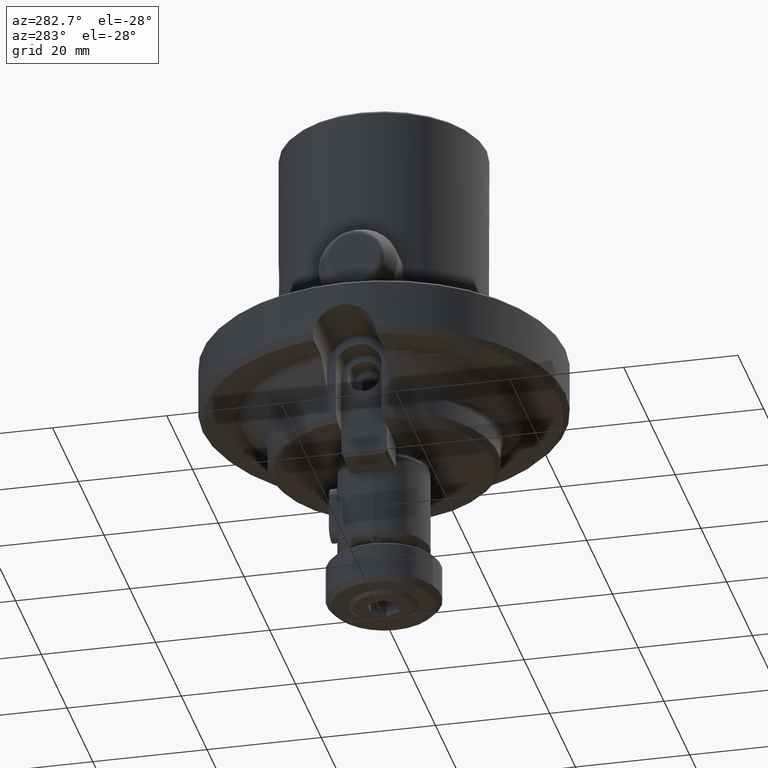
[diagram: clean part render]
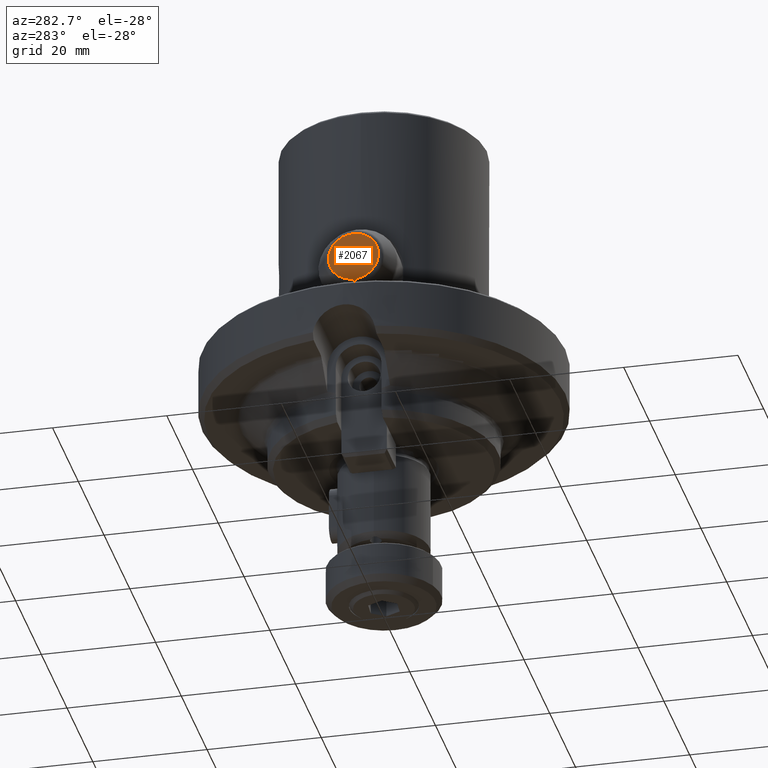
[diagram: same view with one face highlighted and labeled with its STEP entity id]
A machine part, auxiliary view. The second image highlights one B-rep face of the part: STEP entity #2067.
In plain terms, the highlighted planar face has unit normal (1, 0, 0).
Its self-contained STEP definition (entity closure, byte-faithful):
#1239=VERTEX_POINT('NONE',#3467);
#1445=EDGE_CURVE('Kante5',#1569,#1239,#3696,.T.);
#1569=VERTEX_POINT('NONE',#3829);
#2067=ADVANCED_FACE('NONE',(#4385),#4386,.F.);
#2069=EDGE_CURVE('Kante5',#1239,#1569,#4388,.T.);
#3467=CARTESIAN_POINT('',(-23.6764049373483,0.141017633830679,13.393528786593));
#3696=CIRCLE('',#6358,4.39579130210616);
#3829=CARTESIAN_POINT('',(-23.6764049373483,-0.14101763383051,4.60647121340705));
#4385=FACE_OUTER_BOUND('',#7704,.T.);
#4386=PLANE('',#7705);
#4388=CIRCLE('',#7708,4.39579130210616);
#6358=AXIS2_PLACEMENT_3D('',#10575,#10576,#10577);
#7704=EDGE_LOOP('',(#11367,#11368));
#7705=AXIS2_PLACEMENT_3D('',#11369,#11370,#11371);
#7708=AXIS2_PLACEMENT_3D('',#11372,#11373,#11374);
#10575=CARTESIAN_POINT('',(-23.6764049373483,8.51555870861016E-014,9.00000000000001));
#10576=DIRECTION('',(1.0,1.22464679914735E-016,6.37890785824931E-033));
#10577=DIRECTION('',(3.92868500857237E-018,-0.0320801476091528,-0.99948529960644));
#11367=ORIENTED_EDGE('',*,*,#1445,.F.);
#11368=ORIENTED_EDGE('',*,*,#2069,.F.);
#11369=CARTESIAN_POINT('',(-23.6764049373483,4.39352878659304,8.85898236616941));
#11370=DIRECTION('',(1.0,1.22464679914735E-016,6.16297582203915E-033));
#11371=DIRECTION('',(3.92868500857237E-018,-0.0320801476091528,-0.99948529960644));
#11372=CARTESIAN_POINT('',(-23.6764049373483,8.51555870861016E-014,9.00000000000001));
#11373=DIRECTION('',(1.0,1.22464679914735E-016,6.37890785824931E-033));
#11374=DIRECTION('',(3.92868500857237E-018,-0.0320801476091528,-0.99948529960644));